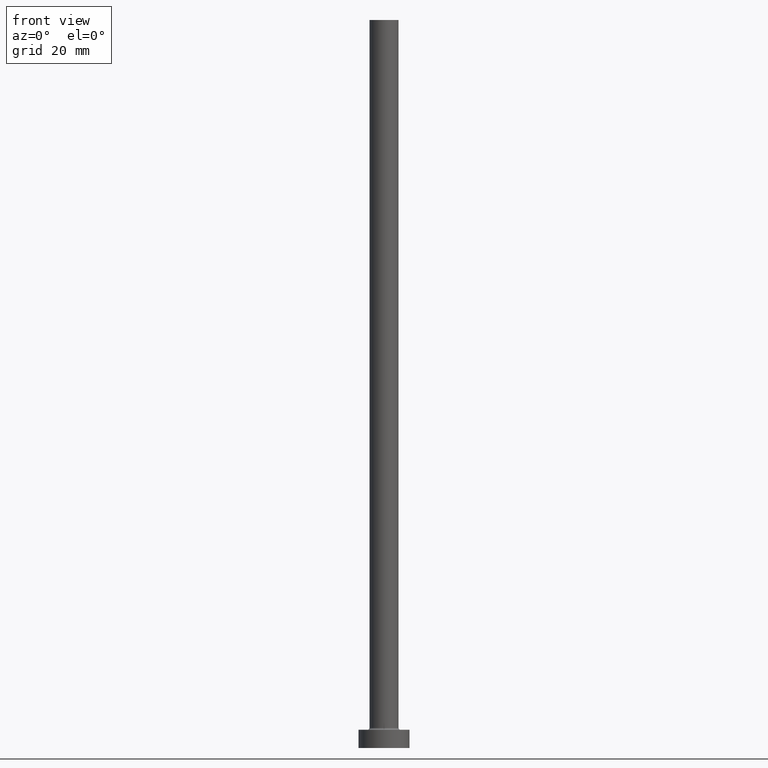
[diagram: clean part render]
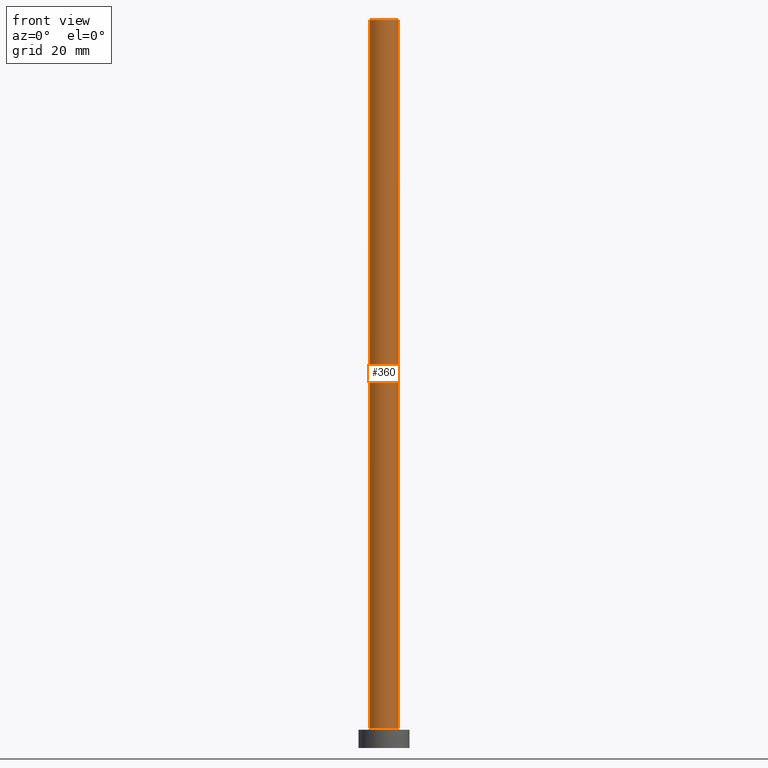
[diagram: same view with one face highlighted and labeled with its STEP entity id]
A machine part, front view. The second image highlights one B-rep face of the part: STEP entity #360.
In plain terms, the highlighted cylindrical surface (edge-blend (fillet) strip) has radius 4 mm, axis along (-0, -0, -1).
Its self-contained STEP definition (entity closure, byte-faithful):
#4 = AXIS2_PLACEMENT_3D ( 'NONE', #26, #208, #164 ) ;
#26 = CARTESIAN_POINT ( 'NONE',  ( 0.000000000000000000, 0.000000000000000000, 200.0000000000000000 ) ) ;
#28 = EDGE_CURVE ( 'NONE', #94, #354, #335, .T. ) ;
#38 = LINE ( 'NONE', #319, #292 ) ;
#48 = VECTOR ( 'NONE', #251, 1000.000000000000000 ) ;
#51 = CARTESIAN_POINT ( 'NONE',  ( -4.000000000000000000, 0.000000000000000000, 200.0000000000000000 ) ) ;
#72 = FACE_OUTER_BOUND ( 'NONE', #201, .T. ) ;
#77 = DIRECTION ( 'NONE',  ( 1.000000000000000000, 0.000000000000000000, 0.000000000000000000 ) ) ;
#94 = VERTEX_POINT ( 'NONE', #141 ) ;
#100 = AXIS2_PLACEMENT_3D ( 'NONE', #304, #111, #77 ) ;
#109 = CARTESIAN_POINT ( 'NONE',  ( 4.000000000000000000, 4.898587196589412829E-16, 200.0000000000000000 ) ) ;
#111 = DIRECTION ( 'NONE',  ( 0.000000000000000000, 0.000000000000000000, 1.000000000000000000 ) ) ;
#141 = CARTESIAN_POINT ( 'NONE',  ( 4.000000000000000000, 4.898587196589412829E-16, 200.0000000000000000 ) ) ;
#144 = EDGE_CURVE ( 'NONE', #241, #225, #38, .T. ) ;
#164 = DIRECTION ( 'NONE',  ( 1.000000000000000000, 0.000000000000000000, 0.000000000000000000 ) ) ;
#166 = AXIS2_PLACEMENT_3D ( 'NONE', #215, #383, #412 ) ;
#201 = EDGE_LOOP ( 'NONE', ( #417, #299, #313, #230 ) ) ;
#204 = CIRCLE ( 'NONE', #4, 4.000000000000000000 ) ;
#208 = DIRECTION ( 'NONE',  ( 0.000000000000000000, 0.000000000000000000, 1.000000000000000000 ) ) ;
#215 = CARTESIAN_POINT ( 'NONE',  ( 0.000000000000000000, 0.000000000000000000, 200.0000000000000000 ) ) ;
#225 = VERTEX_POINT ( 'NONE', #339 ) ;
#227 = CIRCLE ( 'NONE', #100, 4.000000000000000000 ) ;
#230 = ORIENTED_EDGE ( 'NONE', *, *, #461, .T. ) ;
#240 = CYLINDRICAL_SURFACE ( 'NONE', #166, 4.000000000000000000 ) ;
#241 = VERTEX_POINT ( 'NONE', #51 ) ;
#251 = DIRECTION ( 'NONE',  ( -0.000000000000000000, -0.000000000000000000, -1.000000000000000000 ) ) ;
#292 = VECTOR ( 'NONE', #460, 1000.000000000000000 ) ;
#299 = ORIENTED_EDGE ( 'NONE', *, *, #376, .F. ) ;
#304 = CARTESIAN_POINT ( 'NONE',  ( 0.000000000000000000, 0.000000000000000000, 5.500000000000005329 ) ) ;
#313 = ORIENTED_EDGE ( 'NONE', *, *, #144, .T. ) ;
#319 = CARTESIAN_POINT ( 'NONE',  ( -4.000000000000000000, 0.000000000000000000, 200.0000000000000000 ) ) ;
#335 = LINE ( 'NONE', #109, #48 ) ;
#339 = CARTESIAN_POINT ( 'NONE',  ( -4.000000000000000000, 0.000000000000000000, 5.500000000000005329 ) ) ;
#354 = VERTEX_POINT ( 'NONE', #455 ) ;
#360 = ADVANCED_FACE ( 'NONE', ( #72 ), #240, .T. ) ;
#376 = EDGE_CURVE ( 'NONE', #241, #94, #204, .T. ) ;
#383 = DIRECTION ( 'NONE',  ( -0.000000000000000000, -0.000000000000000000, -1.000000000000000000 ) ) ;
#412 = DIRECTION ( 'NONE',  ( -1.000000000000000000, 0.000000000000000000, 0.000000000000000000 ) ) ;
#417 = ORIENTED_EDGE ( 'NONE', *, *, #28, .F. ) ;
#455 = CARTESIAN_POINT ( 'NONE',  ( 4.000000000000000000, 4.898587196589412829E-16, 5.500000000000005329 ) ) ;
#460 = DIRECTION ( 'NONE',  ( -0.000000000000000000, -0.000000000000000000, -1.000000000000000000 ) ) ;
#461 = EDGE_CURVE ( 'NONE', #225, #354, #227, .T. ) ;